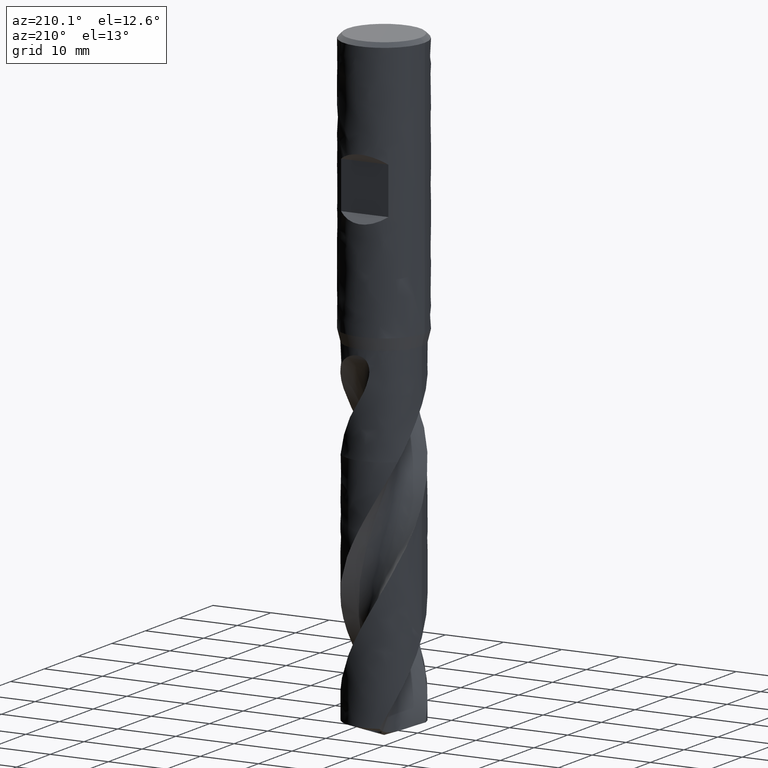
[diagram: clean part render]
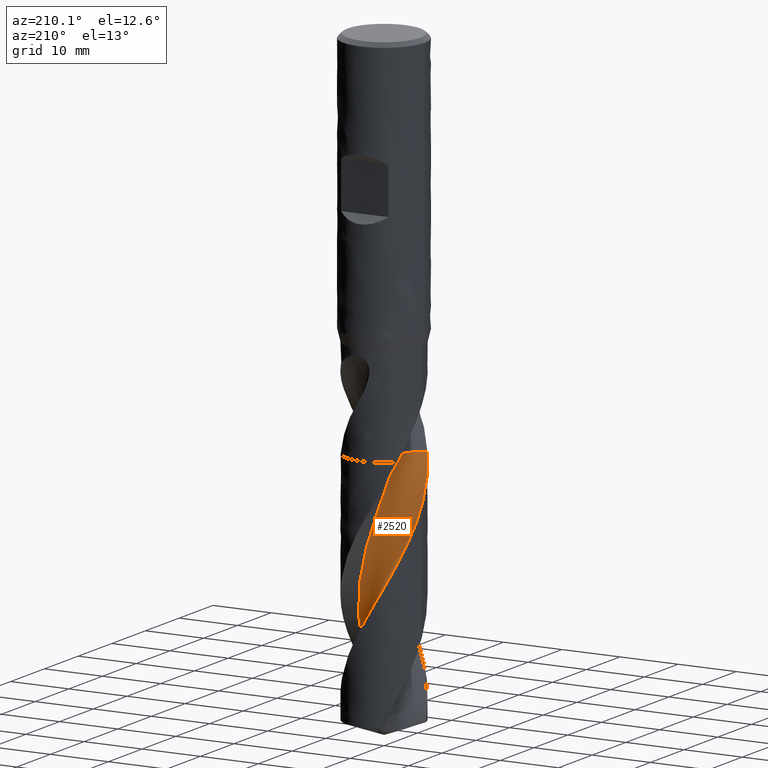
[diagram: same view with one face highlighted and labeled with its STEP entity id]
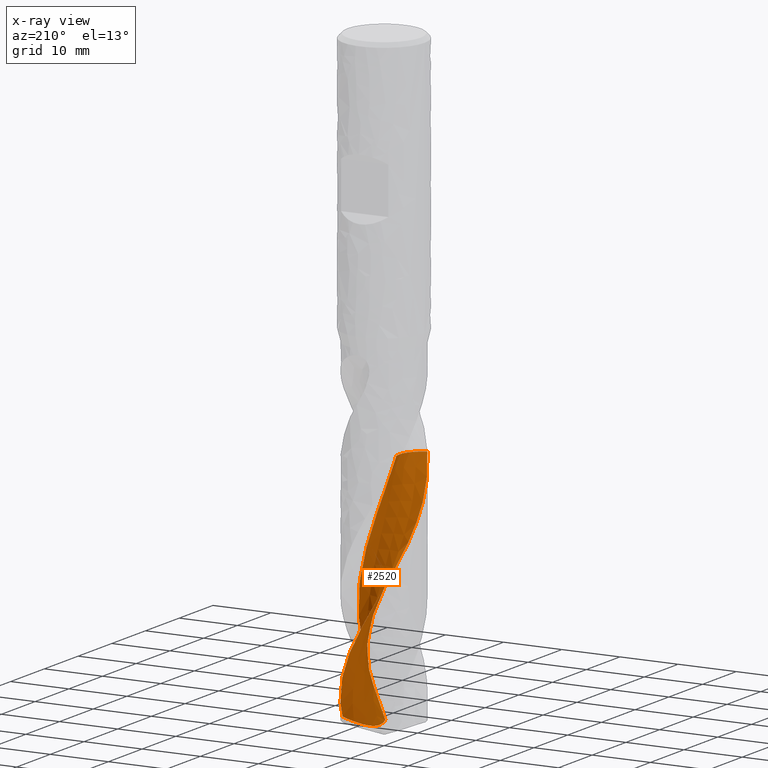
[diagram: x-ray of the same camera — body ghosted, the highlighted face saturated]
A machine part, auxiliary view. The second image highlights one B-rep face of the part: STEP entity #2520.
The next image is the same camera in x-ray: the body ghosted, the highlighted face saturated — about 0% of this face is hidden behind the body in this view.
In plain terms, the highlighted face is a freeform B-spline surface patch.
Its self-contained STEP definition (entity closure, byte-faithful):
#1662 = VERTEX_POINT('', #1663);
#1663 = CARTESIAN_POINT('', (-3.274731390133, 2.16180100099735, -64.));
#1669 = EDGE_CURVE('', #1662, #1670, #1672, .T.);
#1670 = VERTEX_POINT('', #1671);
#1671 = CARTESIAN_POINT('', (-5.1760718996073, -3.93170188214921, -64.));
#1672 = CIRCLE('', #1673, 3.93262291009233);
#1673 = AXIS2_PLACEMENT_3D('', #1674, #1675, #1676);
#1674 = CARTESIAN_POINT('', (-6.41872822901847, -0.200572066561848, -64.));
#1675 = DIRECTION('', (5.3161411429587E-15, -1.05956009560986E-15, -1.));
#1676 = DIRECTION('', (0.799465634835287, 0.600711826683486, 3.61358187321475E-15));
#2447 = EDGE_CURVE('', #1670, #2448, #2450, .T.);
#2448 = VERTEX_POINT('', #2449);
#2449 = CARTESIAN_POINT('', (-6.4940516425605, -0.278016660934741, -70.8407185452002));
#2450 = B_SPLINE_CURVE_WITH_KNOTS('', 3, (#2451, #2452, #2453, #2454, #2455, #2456, #2457, #2458, #2459, #2460, #2461, #2462, #2463, #2464, #2465, #2466, #2467, #2468, #2469, #2470, #2471, #2472, #2473, #2474, #2475, #2476, #2477, #2478, #2479, #2480, #2481, #2482, #2483, #2484), .UNSPECIFIED., .F., .U., (4, 3, 3, 3, 3, 3, 3, 3, 3, 3, 3, 4), (3.82953445312927, 4.21169501627365, 4.65498489470603, 4.95051876793634, 5.61529040440842, 6.28001125312009, 7.27671476023725, 7.94130329898826, 8.93767867998774, 9.93387214064638, 10.9298708244884, 11.7256199762565), .UNSPECIFIED.);
#2451 = CARTESIAN_POINT('', (-5.1760718996073, -3.93170188214921, -64.));
#2452 = CARTESIAN_POINT('', (-5.21454809919389, -3.8810480987614, -64.1103684146986));
#2453 = CARTESIAN_POINT('', (-5.25232311403442, -3.82977308815764, -64.2207020541716));
#2454 = CARTESIAN_POINT('', (-5.28935729741552, -3.7779226276192, -64.3310080362054));
#2455 = CARTESIAN_POINT('', (-5.33231536329698, -3.71777831508303, -64.4589582489742));
#2456 = CARTESIAN_POINT('', (-5.3742801368742, -3.65685417872914, -64.586881603661));
#2457 = CARTESIAN_POINT('', (-5.41518617788323, -3.59524111275758, -64.7148054740404));
#2458 = CARTESIAN_POINT('', (-5.44245754437747, -3.55416472253508, -64.8000901573396));
#2459 = CARTESIAN_POINT('', (-5.46925798925553, -3.51278311336875, -64.8853802651883));
#2460 = CARTESIAN_POINT('', (-5.49557245800577, -3.47112134026, -64.9706816125718));
#2461 = CARTESIAN_POINT('', (-5.55476402296169, -3.3774076661383, -65.162557811647));
#2462 = CARTESIAN_POINT('', (-5.61151306120536, -3.28225162863991, -65.3545038774281));
#2463 = CARTESIAN_POINT('', (-5.6657692055298, -3.18575882792, -65.5464616333618));
#2464 = CARTESIAN_POINT('', (-5.72002120474951, -3.089273399135, -65.7384047239519));
#2465 = CARTESIAN_POINT('', (-5.77179029725185, -2.99143527269054, -65.930390426716));
#2466 = CARTESIAN_POINT('', (-5.82103620714535, -2.89232388834701, -66.1223452163533));
#2467 = CARTESIAN_POINT('', (-5.89487708515778, -2.74371313759068, -66.4101683114319));
#2468 = CARTESIAN_POINT('', (-5.96305807500511, -2.59219794575444, -66.6980139604175));
#2469 = CARTESIAN_POINT('', (-6.02532457675081, -2.43833216457529, -66.9858124467045));
#2470 = CARTESIAN_POINT('', (-6.06684304549584, -2.33573652409902, -67.1777126197153));
#2471 = CARTESIAN_POINT('', (-6.10574023526212, -2.23207966691686, -67.3696333513151));
#2472 = CARTESIAN_POINT('', (-6.14195730381001, -2.12752449531723, -67.5615496485148));
#2473 = CARTESIAN_POINT('', (-6.19625525414919, -1.97077156795884, -67.8492775622426));
#2474 = CARTESIAN_POINT('', (-6.24454626531523, -1.81194493335445, -68.137079243766));
#2475 = CARTESIAN_POINT('', (-6.28668331346321, -1.65154864179731, -68.4248371260434));
#2476 = CARTESIAN_POINT('', (-6.32881266813913, -1.49118163573696, -68.7125424688732));
#2477 = CARTESIAN_POINT('', (-6.36480586861794, -1.3291834079168, -69.0003069310121));
#2478 = CARTESIAN_POINT('', (-6.39454628081804, -1.16609513440152, -69.2880299686281));
#2479 = CARTESIAN_POINT('', (-6.42428087814076, -1.00303874808085, -69.5756967503264));
#2480 = CARTESIAN_POINT('', (-6.44777596374555, -0.838834080519204, -69.8634273195549));
#2481 = CARTESIAN_POINT('', (-6.46495871386772, -0.674024352663626, -70.1511185001513));
#2482 = CARTESIAN_POINT('', (-6.47868680312786, -0.542350281932602, -70.3809682144579));
#2483 = CARTESIAN_POINT('', (-6.48839035831112, -0.410255758242929, -70.6108529681596));
#2484 = CARTESIAN_POINT('', (-6.49405164256049, -0.278016660934767, -70.8407185452002));
#2520 = ADVANCED_FACE('', (#2521), #2757, .T.);
#2521 = FACE_OUTER_BOUND('', #2522, .T.);
#2522 = EDGE_LOOP('', (#2523, #2524, #2567, #2708, #2723, #2756));
#2523 = ORIENTED_EDGE('', *, *, #1669, .F.);
#2524 = ORIENTED_EDGE('', *, *, #2525, .F.);
#2525 = EDGE_CURVE('', #2526, #1662, #2528, .T.);
#2526 = VERTEX_POINT('', #2527);
#2527 = CARTESIAN_POINT('', (1.76933288508049, -3.46675090777578, -105.583370022159));
#2528 = B_SPLINE_CURVE_WITH_KNOTS('', 3, (#2529, #2530, #2531, #2532, #2533, #2534, #2535, #2536, #2537, #2538, #2539, #2540, #2541, #2542, #2543, #2544, #2545, #2546, #2547, #2548, #2549, #2550, #2551, #2552, #2553, #2554, #2555, #2556, #2557, #2558, #2559, #2560, #2561, #2562, #2563, #2564, #2565, #2566), .UNSPECIFIED., .F., .U., (4, 1, 1, 1, 1, 1, 1, 1, 1, 1, 1, 1, 1, 1, 1, 1, 1, 1, 1, 1, 1, 1, 1, 1, 1, 1, 1, 1, 1, 1, 1, 1, 1, 1, 1, 4), (1.4666299778413, 2.41020408163265, 3.61530612244898, 4.82040816326531, 6.02551020408163, 7.23061224489796, 8.43571428571429, 9.64081632653061, 10.8459183673469, 12.0510204081633, 13.2561224489796, 14.4612244897959, 15.6663265306122, 16.8714285714286, 18.0765306122449, 19.2816326530612, 20.4867346938776, 21.6918367346939, 22.8969387755102, 24.1020408163265, 25.3071428571429, 26.5122448979592, 27.7173469387755, 28.9224489795918, 30.1275510204082, 31.3326530612245, 32.5377551020408, 33.7428571428571, 34.9479591836735, 36.1530612244898, 37.3581632653061, 38.5632653061224, 39.7683673469388, 40.9734693877551, 42.1785714285714, 43.05), .UNSPECIFIED.);
#2529 = CARTESIAN_POINT('', (1.76933288508049, -3.46675090777578, -105.583370022159));
#2530 = CARTESIAN_POINT('', (1.86403161741141, -3.41547287836796, -105.268845320895));
#2531 = CARTESIAN_POINT('', (2.07468531352025, -3.29001168240015, -104.552619939359));
#2532 = CARTESIAN_POINT('', (2.38330179197817, -3.06480483217446, -103.434693877551));
#2533 = CARTESIAN_POINT('', (2.68814217933525, -2.78931151072497, -102.229591836735));
#2534 = CARTESIAN_POINT('', (2.96199499352436, -2.48419282969365, -101.024489795918));
#2535 = CARTESIAN_POINT('', (3.20205648307337, -2.15284875457277, -99.819387755102));
#2536 = CARTESIAN_POINT('', (3.40588527757476, -1.79893476523791, -98.6142857142857));
#2537 = CARTESIAN_POINT('', (3.57142669086556, -1.42632644184809, -97.4091836734694));
#2538 = CARTESIAN_POINT('', (3.69703120537813, -1.03907896841299, -96.2040816326531));
#2539 = CARTESIAN_POINT('', (3.78146949403353, -0.641385956096459, -94.9989795918367));
#2540 = CARTESIAN_POINT('', (3.82394319587153, -0.23753689451328, -93.7938775510204));
#2541 = CARTESIAN_POINT('', (3.82409154838274, 0.168126086225984, -92.5887755102041));
#2542 = CARTESIAN_POINT('', (3.78199378763708, 0.571251822612428, -91.3836734693878));
#2543 = CARTESIAN_POINT('', (3.69816732451443, 0.967523674991317, -90.1785714285715));
#2544 = CARTESIAN_POINT('', (3.57356172485133, 1.35270264467177, -88.9734693877551));
#2545 = CARTESIAN_POINT('', (3.40954856110614, 1.72266965894616, -87.7683673469388));
#2546 = CARTESIAN_POINT('', (3.20790723667037, 2.07346664231647, -86.5632653061224));
#2547 = CARTESIAN_POINT('', (2.97080691804732, 2.40133600295455, -85.3581632653061));
#2548 = CARTESIAN_POINT('', (2.700784742685, 2.70275817758209, -84.1530612244898));
#2549 = CARTESIAN_POINT('', (2.40072050156955, 2.97448689464156, -82.9479591836735));
#2550 = CARTESIAN_POINT('', (2.07380802549667, 3.21358183490346, -81.7428571428572));
#2551 = CARTESIAN_POINT('', (1.72352353182169, 3.41743839049559, -80.5377551020408));
#2552 = CARTESIAN_POINT('', (1.35359121524303, 3.58381424703327, -79.3326530612245));
#2553 = CARTESIAN_POINT('', (0.967946387922444, 3.71085254113963, -78.1275510204082));
#2554 = CARTESIAN_POINT('', (0.570696504644847, 3.79710136875352, -76.9224489795918));
#2555 = CARTESIAN_POINT('', (0.166080396016395, 3.84152946889434, -75.7173469387755));
#2556 = CARTESIAN_POINT('', (-0.241573830700888, 3.84353786773258, -74.5122448979592));
#2557 = CARTESIAN_POINT('', (-0.647892196388959, 3.80296756817977, -73.3071428571429));
#2558 = CARTESIAN_POINT('', (-1.04849785427849, 3.72010240775062, -72.1020408163266));
#2559 = CARTESIAN_POINT('', (-1.4390582048143, 3.59566996371033, -70.8969387755102));
#2560 = CARTESIAN_POINT('', (-1.8153173920344, 3.43082953503109, -69.6918367346939));
#2561 = CARTESIAN_POINT('', (-2.17318216479515, 3.22718809041112, -68.4867346938776));
#2562 = CARTESIAN_POINT('', (-2.50860546387415, 2.98669170372674, -67.2816326530612));
#2563 = CARTESIAN_POINT('', (-2.81821987923533, 2.71196183364429, -66.0765306122449));
#2564 = CARTESIAN_POINT('', (-3.07142043178922, 2.43328741944995, -64.9826530612245));
#2565 = CARTESIAN_POINT('', (-3.21742118566723, 2.24403980479224, -64.2904761904762));
#2566 = CARTESIAN_POINT('', (-3.274731390133, 2.16180100099735, -64.));
#2567 = ORIENTED_EDGE('', *, *, #2568, .T.);
#2568 = EDGE_CURVE('', #2526, #2569, #2571, .T.);
#2569 = VERTEX_POINT('', #2570);
#2570 = CARTESIAN_POINT('', (6.35152089864831, 1.3813697093949, -104.63419347727));
#2571 = B_SPLINE_CURVE_WITH_KNOTS('', 3, (#2572, #2573, #2574, #2575, #2576, #2577, #2578, #2579, #2580, #2581, #2582, #2583, #2584, #2585, #2586, #2587, #2588, #2589, #2590, #2591, #2592, #2593, #2594, #2595, #2596, #2597, #2598, #2599, #2600, #2601, #2602, #2603, #2604, #2605, #2606, #2607, #2608, #2609, #2610, #2611, #2612, #2613, #2614, #2615, #2616, #2617, #2618, #2619, #2620, #2621, #2622, #2623, #2624, #2625, #2626, #2627, #2628, #2629, #2630, #2631, #2632, #2633, #2634, #2635, #2636, #2637, #2638, #2639, #2640, #2641, #2642, #2643, #2644, #2645, #2646, #2647, #2648, #2649, #2650, #2651, #2652, #2653, #2654, #2655, #2656, #2657, #2658, #2659, #2660, #2661, #2662, #2663, #2664, #2665, #2666, #2667, #2668, #2669, #2670, #2671, #2672, #2673, #2674, #2675, #2676, #2677, #2678, #2679, #2680, #2681, #2682, #2683, #2684, #2685, #2686, #2687, #2688, #2689, #2690, #2691, #2692, #2693, #2694, #2695, #2696, #2697, #2698, #2699, #2700, #2701, #2702, #2703, #2704, #2705, #2706, #2707), .UNSPECIFIED., .F., .U., (4, 3, 3, 3, 3, 3, 3, 3, 3, 3, 3, 3, 3, 3, 3, 3, 3, 3, 3, 3, 3, 3, 3, 3, 3, 3, 3, 3, 3, 3, 3, 3, 3, 3, 3, 3, 3, 3, 3, 3, 3, 3, 3, 3, 3, 4), (0., 0.197245015067346, 0.394378820851563, 0.59136970964305, 0.788184230135274, 0.984791408064057, 1.18116950054274, 1.31213855939979, 1.44304552365352, 1.57390010649681, 1.70471699541995, 1.83551545641229, 1.96631807802052, 2.09714865878288, 2.22802951020873, 2.35897870320416, 2.4900078950257, 2.62112124878199, 2.75231563162057, 2.88358189985576, 3.01490681895095, 3.14627510838161, 3.2776712151717, 3.40908060866734, 3.60619563629674, 3.73758727468209, 3.77651268036911, 3.81545907693706, 4.0134614030589, 4.07193631900442, 4.27040134124377, 4.46857316330088, 4.66649134392046, 4.86419049878162, 5.06170014098506, 5.25904501924221, 5.45624566055496, 5.65331896011221, 5.85027874109413, 6.14540304955196, 6.44022313230271, 6.73477174461404, 7.02907179497246, 7.32313849173983, 7.61698086497417, 7.75638858353889), .UNSPECIFIED.);
#2572 = CARTESIAN_POINT('', (1.76933288508049, -3.46675090777578, -105.583370022159));
#2573 = CARTESIAN_POINT('', (1.75445268951992, -3.40659293656949, -105.605334590831));
#2574 = CARTESIAN_POINT('', (1.74152128202977, -3.34585772603155, -105.627137050641));
#2575 = CARTESIAN_POINT('', (1.73061558853178, -3.28470357063702, -105.648679546407));
#2576 = CARTESIAN_POINT('', (1.71971604380441, -3.22358389474394, -105.670209896237));
#2577 = CARTESIAN_POINT('', (1.71082920477251, -3.16198445625963, -105.691502296597));
#2578 = CARTESIAN_POINT('', (1.70402047145991, -3.10007259446645, -105.71244348425));
#2579 = CARTESIAN_POINT('', (1.6972166743057, -3.0382056171976, -105.733369490075));
#2580 = CARTESIAN_POINT('', (1.69248109057908, -2.97596182652599, -105.753966832235));
#2581 = CARTESIAN_POINT('', (1.68986485135094, -2.91351725060771, -105.774104917609));
#2582 = CARTESIAN_POINT('', (1.68725095447308, -2.85112858206526, -105.794224973115));
#2583 = CARTESIAN_POINT('', (1.68675005469763, -2.78847109426208, -105.813908690434));
#2584 = CARTESIAN_POINT('', (1.68839555253394, -2.72572917020534, -105.833006814831));
#2585 = CARTESIAN_POINT('', (1.69003931685111, -2.6630533442766, -105.852084819503));
#2586 = CARTESIAN_POINT('', (1.69382722883442, -2.60022135488842, -105.87060025542));
#2587 = CARTESIAN_POINT('', (1.69977056862101, -2.53742564494625, -105.888385274517));
#2588 = CARTESIAN_POINT('', (1.70570698326537, -2.47470310417129, -105.906149570621));
#2589 = CARTESIAN_POINT('', (1.71380138944356, -2.4119414578065, -105.923206150908));
#2590 = CARTESIAN_POINT('', (1.72403752086119, -2.34934082799143, -105.939371271277));
#2591 = CARTESIAN_POINT('', (1.73086423193259, -2.30759103061202, -105.950152161214));
#2592 = CARTESIAN_POINT('', (1.73864741297244, -2.26588396688612, -105.960543792051));
#2593 = CARTESIAN_POINT('', (1.74737400823058, -2.22428088749961, -105.970489015722));
#2594 = CARTESIAN_POINT('', (1.75609646606515, -2.18269753282314, -105.980429524197));
#2595 = CARTESIAN_POINT('', (1.7657665261705, -2.14119414449153, -105.98992964533));
#2596 = CARTESIAN_POINT('', (1.77636357924182, -2.09983313682761, -105.998931860435));
#2597 = CARTESIAN_POINT('', (1.78695639198421, -2.05848867945139, -106.007930473374));
#2598 = CARTESIAN_POINT('', (1.79848175677541, -2.01726211428671, -106.016436729067));
#2599 = CARTESIAN_POINT('', (1.81091078433224, -1.97621658511913, -106.024394786725));
#2600 = CARTESIAN_POINT('', (1.82333623158823, -1.9351828795107, -106.032350551988));
#2601 = CARTESIAN_POINT('', (1.83667232635668, -1.89430544091646, -106.039763037248));
#2602 = CARTESIAN_POINT('', (1.8508814491694, -1.85364744770163, -106.046580614019));
#2603 = CARTESIAN_POINT('', (1.86508857036953, -1.81299518190236, -106.053397230411));
#2604 = CARTESIAN_POINT('', (1.88017712126922, -1.77253757328104, -106.059623064279));
#2605 = CARTESIAN_POINT('', (1.89610076251499, -1.73233683307921, -106.065213538601));
#2606 = CARTESIAN_POINT('', (1.91202491028165, -1.69213481411739, -106.070804190752));
#2607 = CARTESIAN_POINT('', (1.92879387024987, -1.65216518529295, -106.075762678756));
#2608 = CARTESIAN_POINT('', (1.94635322163619, -1.61248789509364, -106.080054301236));
#2609 = CARTESIAN_POINT('', (1.96391632634646, -1.57280212384511, -106.084346841053));
#2610 = CARTESIAN_POINT('', (1.98228066572638, -1.53338490063994, -106.087974692687));
#2611 = CARTESIAN_POINT('', (2.00138509333824, -1.49429242107264, -106.090915419066));
#2612 = CARTESIAN_POINT('', (2.02049686168226, -1.45518492051503, -106.093857275398));
#2613 = CARTESIAN_POINT('', (2.04036038672562, -1.41637945228904, -106.096113152518));
#2614 = CARTESIAN_POINT('', (2.06090982218788, -1.37792696207315, -106.097674403988));
#2615 = CARTESIAN_POINT('', (2.08146998787277, -1.33945439326283, -106.099236470691));
#2616 = CARTESIAN_POINT('', (2.10272819115603, -1.30131353131258, -106.10010409636));
#2617 = CARTESIAN_POINT('', (2.12461637630304, -1.26354880652623, -106.100282783295));
#2618 = CARTESIAN_POINT('', (2.14651793327066, -1.22576101070308, -106.100461579393));
#2619 = CARTESIAN_POINT('', (2.16906166586638, -1.18832980792302, -106.099950802425));
#2620 = CARTESIAN_POINT('', (2.19217993735495, -1.15129229919922, -106.098769214621));
#2621 = CARTESIAN_POINT('', (2.21531305804184, -1.11423100075077, -106.097586867867));
#2622 = CARTESIAN_POINT('', (2.2390326107173, -1.07754576135411, -106.09573244515));
#2623 = CARTESIAN_POINT('', (2.26327378508301, -1.04126612040649, -106.093236012229));
#2624 = CARTESIAN_POINT('', (2.28752994068485, -1.00496405835585, -106.090738036493));
#2625 = CARTESIAN_POINT('', (2.31231901048006, -0.969051934980464, -106.087596354635));
#2626 = CARTESIAN_POINT('', (2.33758090659226, -0.93355207917882, -106.083849686867));
#2627 = CARTESIAN_POINT('', (2.36285664446645, -0.898032771925379, -106.080100966185));
#2628 = CARTESIAN_POINT('', (2.38861569264023, -0.862912006511518, -106.075745314983));
#2629 = CARTESIAN_POINT('', (2.4148039165382, -0.828205721369109, -106.070827213695));
#2630 = CARTESIAN_POINT('', (2.44100384155234, -0.793483929169946, -106.065906914958));
#2631 = CARTESIAN_POINT('', (2.46764250629592, -0.759164700070192, -106.060422118414));
#2632 = CARTESIAN_POINT('', (2.49467228966679, -0.725258690102425, -106.054420321773));
#2633 = CARTESIAN_POINT('', (2.52171099968145, -0.691341482602335, -106.048416543026));
#2634 = CARTESIAN_POINT('', (2.54914944573624, -0.657827205214756, -106.041893716229));
#2635 = CARTESIAN_POINT('', (2.57694651534433, -0.624722439958292, -106.034900033249));
#2636 = CARTESIAN_POINT('', (2.60474947100817, -0.5916106647365, -106.027904869351));
#2637 = CARTESIAN_POINT('', (2.6329187587333, -0.558899533881663, -106.020436864491));
#2638 = CARTESIAN_POINT('', (2.66141936477371, -0.52659271333041, -106.012543125127));
#2639 = CARTESIAN_POINT('', (2.68992285278049, -0.494282625930371, -106.004648587551));
#2640 = CARTESIAN_POINT('', (2.71876453815591, -0.462369191876582, -105.996326425978));
#2641 = CARTESIAN_POINT('', (2.74791485469957, -0.430854173098805, -105.987621431049));
#2642 = CARTESIAN_POINT('', (2.79164053745373, -0.38358142012526, -105.97456387656));
#2643 = CARTESIAN_POINT('', (2.83607670388433, -0.337187038800803, -105.960640698102));
#2644 = CARTESIAN_POINT('', (2.88114286246724, -0.291672829791676, -105.94598988365));
#2645 = CARTESIAN_POINT('', (2.91118276598527, -0.261334267768055, -105.936224040134));
#2646 = CARTESIAN_POINT('', (2.94150975383205, -0.231379848555125, -105.926132405016));
#2647 = CARTESIAN_POINT('', (2.97210456873101, -0.201809761846398, -105.915751503227));
#2648 = CARTESIAN_POINT('', (2.98116842999719, -0.193049481241922, -105.912676111075));
#2649 = CARTESIAN_POINT('', (2.99025609886044, -0.184322657538022, -105.909575213701));
#2650 = CARTESIAN_POINT('', (2.99936712534693, -0.175629297705287, -105.90644970168));
#2651 = CARTESIAN_POINT('', (3.00848306503776, -0.166931249898774, -105.903322504198));
#2652 = CARTESIAN_POINT('', (3.01762251074699, -0.158266584549969, -105.900170623269));
#2653 = CARTESIAN_POINT('', (3.02678503252127, -0.149635310795857, -105.896994924244));
#2654 = CARTESIAN_POINT('', (3.0733670217249, -0.105754170785208, -105.8808497645));
#2655 = CARTESIAN_POINT('', (3.12055379812397, -0.062727405666413, -105.864087075488));
#2656 = CARTESIAN_POINT('', (3.16829600279225, -0.0205575487570152, -105.846810287255));
#2657 = CARTESIAN_POINT('', (3.18239544020651, -0.00810376153890734, -105.84170803033));
#2658 = CARTESIAN_POINT('', (3.19654421708171, 0.00427601807754229, -105.836560530017));
#2659 = CARTESIAN_POINT('', (3.21074122540818, 0.016581675175908, -105.831370179821));
#2660 = CARTESIAN_POINT('', (3.25892615270025, 0.0583473189601965, -105.813754028511));
#2661 = CARTESIAN_POINT('', (3.30767517037318, 0.0992670403019206, -105.795642029474));
#2662 = CARTESIAN_POINT('', (3.35694979797664, 0.139334026882377, -105.777118188978));
#2663 = CARTESIAN_POINT('', (3.40615163023495, 0.179341820927872, -105.758621714479));
#2664 = CARTESIAN_POINT('', (3.45589088365847, 0.218510159662243, -105.739709500502));
#2665 = CARTESIAN_POINT('', (3.50613462440283, 0.256828413372458, -105.720452257723));
#2666 = CARTESIAN_POINT('', (3.55631405784811, 0.295097623294037, -105.701219662418));
#2667 = CARTESIAN_POINT('', (3.60700942063707, 0.332528547695754, -105.681637946936));
#2668 = CARTESIAN_POINT('', (3.65819124274261, 0.369106716584301, -105.661766879078));
#2669 = CARTESIAN_POINT('', (3.70931642458718, 0.405644406315464, -105.641917801498));
#2670 = CARTESIAN_POINT('', (3.76093938647809, 0.441340017146923, -105.62177511151));
#2671 = CARTESIAN_POINT('', (3.81303261024091, 0.476175400063489, -105.601389699928));
#2672 = CARTESIAN_POINT('', (3.86507589790111, 0.510977390090723, -105.581023829621));
#2673 = CARTESIAN_POINT('', (3.91760083790701, 0.5449289638407, -105.560410816678));
#2674 = CARTESIAN_POINT('', (3.9705807503221, 0.578008527351753, -105.539594420926));
#2675 = CARTESIAN_POINT('', (4.02351646651799, 0.611060495655987, -105.518795390359));
#2676 = CARTESIAN_POINT('', (4.07691876720661, 0.643249585694429, -105.497788391269));
#2677 = CARTESIAN_POINT('', (4.13076096775274, 0.67455100717793, -105.47661149858));
#2678 = CARTESIAN_POINT('', (4.1845638156967, 0.705829550837441, -105.455450083822));
#2679 = CARTESIAN_POINT('', (4.23881852291101, 0.736229010280263, -105.434114014079));
#2680 = CARTESIAN_POINT('', (4.29349773654487, 0.765721634965289, -105.412636865747));
#2681 = CARTESIAN_POINT('', (4.34814164123143, 0.79519521487147, -105.391173586223));
#2682 = CARTESIAN_POINT('', (4.40322246800251, 0.823770089106753, -105.369564275256));
#2683 = CARTESIAN_POINT('', (4.45871164754741, 0.851415760932482, -105.347838981643));
#2684 = CARTESIAN_POINT('', (4.51416886409873, 0.879045508240345, -105.32612620228));
#2685 = CARTESIAN_POINT('', (4.57004740410131, 0.905753789127919, -105.304292276901));
#2686 = CARTESIAN_POINT('', (4.62631700398758, 0.931507552829074, -105.282364523357));
#2687 = CARTESIAN_POINT('', (4.71063130750093, 0.970096962629379, -105.249508002761));
#2688 = CARTESIAN_POINT('', (4.79586394857346, 1.00656154742836, -105.216425668439));
#2689 = CARTESIAN_POINT('', (4.88190365621443, 1.0407799744138, -105.183201231121));
#2690 = CARTESIAN_POINT('', (4.9678546707517, 1.07496312770322, -105.150011042855));
#2691 = CARTESIAN_POINT('', (5.05466205707951, 1.1069248077774, -105.116659220143));
#2692 = CARTESIAN_POINT('', (5.14220070607792, 1.13653306526492, -105.083222870372));
#2693 = CARTESIAN_POINT('', (5.22965874945649, 1.16611405945818, -105.049817308805));
#2694 = CARTESIAN_POINT('', (5.31790197124352, 1.19336442807908, -105.016306174687));
#2695 = CARTESIAN_POINT('', (5.40678821331501, 1.21814295330789, -104.982763116231));
#2696 = CARTESIAN_POINT('', (5.49559944658662, 1.24290056858037, -104.949248363893));
#2697 = CARTESIAN_POINT('', (5.58511292965041, 1.26520707056321, -104.915678924312));
#2698 = CARTESIAN_POINT('', (5.67516607874386, 1.28491358082342, -104.882127514727));
#2699 = CARTESIAN_POINT('', (5.7651478237526, 1.30460446558533, -104.848602708406));
#2700 = CARTESIAN_POINT('', (5.85573452010084, 1.32171365793434, -104.815071233424));
#2701 = CARTESIAN_POINT('', (5.9467395587382, 1.33608669944889, -104.781606974331));
#2702 = CARTESIAN_POINT('', (6.03767517580551, 1.35044877674515, -104.748168242851));
#2703 = CARTESIAN_POINT('', (6.12910125186345, 1.36209001273823, -104.714769864672));
#2704 = CARTESIAN_POINT('', (6.22080334708995, 1.37085315772342, -104.681488676296));
#2705 = CARTESIAN_POINT('', (6.26430959754123, 1.37501065902724, -104.665699072872));
#2706 = CARTESIAN_POINT('', (6.30789057696017, 1.3785217742271, -104.64993115551));
#2707 = CARTESIAN_POINT('', (6.35152089864831, 1.3813697093949, -104.63419347727));
#2708 = ORIENTED_EDGE('', *, *, #2709, .F.);
#2709 = EDGE_CURVE('', #2710, #2569, #2712, .T.);
#2710 = VERTEX_POINT('', #2711);
#2711 = CARTESIAN_POINT('', (5.90833566697193, 2.70953310487018, -102.160751738249));
#2712 = B_SPLINE_CURVE_WITH_KNOTS('', 3, (#2713, #2714, #2715, #2716, #2717, #2718, #2719, #2720, #2721, #2722), .UNSPECIFIED., .F., .U., (4, 3, 3, 4), (0., 0.996649814284806, 1.99312293181498, 2.84343295820334), .UNSPECIFIED.);
#2713 = CARTESIAN_POINT('', (5.90833566697188, 2.70953310487027, -102.160751738249));
#2714 = CARTESIAN_POINT('', (5.97668161123896, 2.56049976053498, -102.449690774479));
#2715 = CARTESIAN_POINT('', (6.03938812307023, 2.40887095584368, -102.738691504657));
#2716 = CARTESIAN_POINT('', (6.09625753935408, 2.25513724945253, -103.027654632911));
#2717 = CARTESIAN_POINT('', (6.15311687321866, 2.10143079861955, -103.316566530686));
#2718 = CARTESIAN_POINT('', (6.20416159151847, 1.94556528476745, -103.605540468623));
#2719 = CARTESIAN_POINT('', (6.24923272492601, 1.7880409250667, -103.894475427715));
#2720 = CARTESIAN_POINT('', (6.28769280574796, 1.65362230393426, -104.141029286889));
#2721 = CARTESIAN_POINT('', (6.32181427634443, 1.51796039261904, -104.387623302988));
#2722 = CARTESIAN_POINT('', (6.35152089864831, 1.3813697093949, -104.63419347727));
#2723 = ORIENTED_EDGE('', *, *, #2724, .T.);
#2724 = EDGE_CURVE('', #2710, #2448, #2725, .T.);
#2725 = (
   BOUNDED_CURVE ()
   B_SPLINE_CURVE (3, (#2726, #2727, #2728, #2729, #2730, #2731, #2732, #2733, #2734, #2735, #2736, #2737, #2738, #2739, #2740, #2741, #2742, #2743, #2744, #2745, #2746, #2747, #2748, #2749, #2750, #2751, #2752, #2753, #2754, #2755), .UNSPECIFIED., .F., .U.)
   B_SPLINE_CURVE_WITH_KNOTS ((4, 1, 1, 1, 1, 1, 1, 1, 1, 1, 1, 1, 1, 1, 1, 1, 1, 1, 1, 1, 1, 1, 1, 1, 1, 1, 1, 4), (4.88924826175112, 6.02551020408163, 7.23061224489796, 8.43571428571429, 9.64081632653061, 10.8459183673469, 12.0510204081633, 13.2561224489796, 14.4612244897959, 15.6663265306122, 16.8714285714286, 18.0765306122449, 19.2816326530612, 20.4867346938776, 21.6918367346939, 22.8969387755102, 24.1020408163265, 25.3071428571429, 26.5122448979592, 27.7173469387755, 28.9224489795918, 30.1275510204082, 31.3326530612245, 32.5377551020408, 33.7428571428571, 34.9479591836735, 36.1530612244898, 36.2092814547998), .UNSPECIFIED.)
   CURVE ()
   GEOMETRIC_REPRESENTATION_ITEM ()
   RATIONAL_B_SPLINE_CURVE ((1., 1., 1., 1., 1., 1., 1., 1., 1., 1., 1., 1., 1., 1., 1., 1., 1., 1., 1., 1., 1., 1., 1., 1., 1., 1., 1., 1., 1., 1.))
   REPRESENTATION_ITEM ('')
);
#2726 = CARTESIAN_POINT('', (5.90833566697193, 2.70953310487018, -102.160751738249));
#2727 = CARTESIAN_POINT('', (5.81412422597814, 2.90451787821771, -101.781997757472));
#2728 = CARTESIAN_POINT('', (5.6003899054668, 3.29632286236537, -101.001543096423));
#2729 = CARTESIAN_POINT('', (5.21887280121107, 3.85293253259858, -99.819387755102));
#2730 = CARTESIAN_POINT('', (4.77373126432579, 4.37573664048354, -98.6142857142857));
#2731 = CARTESIAN_POINT('', (4.27734573226735, 4.84848669181043, -97.4091836734694));
#2732 = CARTESIAN_POINT('', (3.73520447454408, 5.26627847725663, -96.2040816326531));
#2733 = CARTESIAN_POINT('', (3.15325247827192, 5.62479484017546, -94.9989795918367));
#2734 = CARTESIAN_POINT('', (2.53783017041521, 5.92034679151663, -93.7938775510204));
#2735 = CARTESIAN_POINT('', (1.89560870644017, 6.14990845411134, -92.5887755102041));
#2736 = CARTESIAN_POINT('', (1.23352228196591, 6.31114551459081, -91.3836734693878));
#2737 = CARTESIAN_POINT('', (0.558698135510806, 6.40243695923007, -90.1785714285714));
#2738 = CARTESIAN_POINT('', (-0.121615123965296, 6.42288991711561, -88.9734693877551));
#2739 = CARTESIAN_POINT('', (-0.800120205917468, 6.37234749610151, -87.7683673469388));
#2740 = CARTESIAN_POINT('', (-1.46954418193402, 6.25138955589263, -86.5632653061224));
#2741 = CARTESIAN_POINT('', (-2.122711220495, 6.06132642264097, -85.3581632653061));
#2742 = CARTESIAN_POINT('', (-2.7526143529582, 5.80418560900812, -84.1530612244898));
#2743 = CARTESIAN_POINT('', (-3.35248561967308, 5.48269166266879, -82.9479591836735));
#2744 = CARTESIAN_POINT('', (-3.9158639587884, 5.10023932432783, -81.7428571428571));
#2745 = CARTESIAN_POINT('', (-4.43666021913699, 4.66086023281848, -80.5377551020408));
#2746 = CARTESIAN_POINT('', (-4.90921870097163, 4.16918347060464, -79.3326530612245));
#2747 = CARTESIAN_POINT('', (-5.32837465974773, 3.63039029305432, -78.1275510204082));
#2748 = CARTESIAN_POINT('', (-5.68950722755139, 3.05016344604714, -76.9224489795918));
#2749 = CARTESIAN_POINT('', (-5.98858729196853, 2.4346314842187, -75.7173469387755));
#2750 = CARTESIAN_POINT('', (-6.2222197319184, 1.79030869591702, -74.5122448979592));
#2751 = CARTESIAN_POINT('', (-6.38768013026432, 1.12403072536498, -73.3071428571429));
#2752 = CARTESIAN_POINT('', (-6.4829436096602, 0.442888097662928, -72.1020408163266));
#2753 = CARTESIAN_POINT('', (-6.49915943054282, -0.0269794804705177, -71.2798993790123));
#2754 = CARTESIAN_POINT('', (-6.49429461554166, -0.267304823079459, -70.8594586219702));
#2755 = CARTESIAN_POINT('', (-6.4940516425605, -0.278016660934742, -70.8407185452002));
#2756 = ORIENTED_EDGE('', *, *, #2447, .F.);
#2757 = (
   BOUNDED_SURFACE ()
   B_SPLINE_SURFACE (3, 2, ((#2758, #2759, #2760, #2761, #2762), (#2763, #2764, #2765, #2766, #2767), (#2768, #2769, #2770, #2771, #2772), (#2773, #2774, #2775, #2776, #2777), (#2778, #2779, #2780, #2781, #2782), (#2783, #2784, #2785, #2786, #2787), (#2788, #2789, #2790, #2791, #2792), (#2793, #2794, #2795, #2796, #2797), (#2798, #2799, #2800, #2801, #2802), (#2803, #2804, #2805, #2806, #2807), (#2808, #2809, #2810, #2811, #2812), (#2813, #2814, #2815, #2816, #2817), (#2818, #2819, #2820, #2821, #2822), (#2823, #2824, #2825, #2826, #2827), (#2828, #2829, #2830, #2831, #2832), (#2833, #2834, #2835, #2836, #2837), (#2838, #2839, #2840, #2841, #2842), (#2843, #2844, #2845, #2846, #2847), (#2848, #2849, #2850, #2851, #2852), (#2853, #2854, #2855, #2856, #2857), (#2858, #2859, #2860, #2861, #2862), (#2863, #2864, #2865, #2866, #2867), (#2868, #2869, #2870, #2871, #2872), (#2873, #2874, #2875, #2876, #2877), (#2878, #2879, #2880, #2881, #2882), (#2883, #2884, #2885, #2886, #2887), (#2888, #2889, #2890, #2891, #2892), (#2893, #2894, #2895, #2896, #2897), (#2898, #2899, #2900, #2901, #2902), (#2903, #2904, #2905, #2906, #2907), (#2908, #2909, #2910, #2911, #2912), (#2913, #2914, #2915, #2916, #2917), (#2918, #2919, #2920, #2921, #2922), (#2923, #2924, #2925, #2926, #2927), (#2928, #2929, #2930, #2931, #2932), (#2933, #2934, #2935, #2936, #2937), (#2938, #2939, #2940, #2941, #2942), (#2943, #2944, #2945, #2946, #2947)), .UNSPECIFIED., .F., .F., .U.)
   B_SPLINE_SURFACE_WITH_KNOTS ((4, 1, 1, 1, 1, 1, 1, 1, 1, 1, 1, 1, 1, 1, 1, 1, 1, 1, 1, 1, 1, 1, 1, 1, 1, 1, 1, 1, 1, 1, 1, 1, 1, 1, 1, 4), (3, 2, 3), (0.949538420604508, 2.41020408163265, 3.61530612244898, 4.82040816326531, 6.02551020408163, 7.23061224489796, 8.43571428571429, 9.64081632653061, 10.8459183673469, 12.0510204081633, 13.2561224489796, 14.4612244897959, 15.6663265306122, 16.8714285714286, 18.0765306122449, 19.2816326530612, 20.4867346938776, 21.6918367346939, 22.8969387755102, 24.1020408163265, 25.3071428571429, 26.5122448979592, 27.7173469387755, 28.9224489795918, 30.1275510204082, 31.3326530612245, 32.5377551020408, 33.7428571428571, 34.9479591836735, 36.1530612244898, 37.3581632653061, 38.5632653061224, 39.7683673469388, 40.9734693877551, 42.1785714285714, 43.050000000009), (0., 0.5, 1.), .UNSPECIFIED.)
   GEOMETRIC_REPRESENTATION_ITEM ()
   RATIONAL_B_SPLINE_SURFACE (((1., 0.887010833178222, 1., 0.887010833178222, 1.), (1., 0.887010833178222, 1., 0.887010833178222, 1.), (1., 0.887010833178222, 1., 0.887010833178222, 1.), (1., 0.887010833178222, 1., 0.887010833178222, 1.), (1., 0.887010833178222, 1., 0.887010833178222, 1.), (1., 0.887010833178222, 1., 0.887010833178222, 1.), (1., 0.887010833178221, 1., 0.887010833178221, 1.), (1., 0.887010833178222, 1., 0.887010833178222, 1.), (1., 0.887010833178222, 1., 0.887010833178222, 1.), (1., 0.887010833178222, 1., 0.887010833178222, 1.), (1., 0.887010833178222, 1., 0.887010833178222, 1.), (1., 0.887010833178222, 1., 0.887010833178222, 1.), (1., 0.887010833178222, 1., 0.887010833178222, 1.), (1., 0.887010833178222, 1., 0.887010833178222, 1.), (1., 0.887010833178222, 1., 0.887010833178222, 1.), (1., 0.887010833178222, 1., 0.887010833178222, 1.), (1., 0.887010833178222, 1., 0.887010833178222, 1.), (1., 0.887010833178222, 1., 0.887010833178222, 1.), (1., 0.887010833178222, 1., 0.887010833178222, 1.), (1., 0.887010833178222, 1., 0.887010833178222, 1.), (1., 0.887010833178222, 1., 0.887010833178222, 1.), (1., 0.887010833178222, 1., 0.887010833178222, 1.), (1., 0.887010833178222, 1., 0.887010833178222, 1.), (1., 0.887010833178222, 1., 0.887010833178222, 1.), (1., 0.887010833178222, 1., 0.887010833178222, 1.), (1., 0.887010833178222, 1., 0.887010833178222, 1.), (1., 0.887010833178222, 1., 0.887010833178222, 1.), (1., 0.887010833178222, 1., 0.887010833178222, 1.), (1., 0.887010833178222, 1., 0.887010833178222, 1.), (1., 0.887010833178222, 1., 0.887010833178222, 1.), (1., 0.887010833178222, 1., 0.887010833178222, 1.), (1., 0.887010833178222, 1., 0.887010833178222, 1.), (1., 0.887010833178221, 1., 0.887010833178221, 1.), (1., 0.887010833178222, 1., 0.887010833178222, 1.), (1., 0.887010833178222, 1., 0.887010833178222, 1.), (1., 0.887010833178222, 1., 0.887010833178222, 1.), (1., 0.887010833178222, 1., 0.887010833178222, 1.), (1., 0.887010833178222, 1., 0.887010833178222, 1.)))
   REPRESENTATION_ITEM ('')
   SURFACE ()
);
#2758 = CARTESIAN_POINT('', (6.52818385020269, 0.546413793487397, -106.100461579395));
#2759 = CARTESIAN_POINT('', (4.56654574812997, 1.07994724920422, -106.100461579395));
#2760 = CARTESIAN_POINT('', (3.00435133518566, -0.22091039405971, -106.100461579395));
#2761 = CARTESIAN_POINT('', (1.44215692224135, -1.52176803732364, -106.100461579395));
#2762 = CARTESIAN_POINT('', (1.61171921578585, -3.54758407548717, -106.100461579395));
#2763 = CARTESIAN_POINT('', (6.49778687224828, 0.825353898489576, -105.613573025719));
#2764 = CARTESIAN_POINT('', (4.51540729488309, 1.27432112149444, -105.613573025719));
#2765 = CARTESIAN_POINT('', (3.01058866285968, -0.0920321420514505, -105.613573025719));
#2766 = CARTESIAN_POINT('', (1.50577003083628, -1.45838540559734, -105.613573025719));
#2767 = CARTESIAN_POINT('', (1.76189259158019, -3.47476870000475, -105.613573025719));
#2768 = CARTESIAN_POINT('', (6.41015723301756, 1.33008926303685, -104.724983791771));
#2769 = CARTESIAN_POINT('', (4.39976063420348, 1.62257305921579, -104.724983791771));
#2770 = CARTESIAN_POINT('', (3.00705581784206, 0.143514388968343, -104.724983791771));
#2771 = CARTESIAN_POINT('', (1.61435100148064, -1.3355442812791, -104.724983791771));
#2772 = CARTESIAN_POINT('', (2.02710226937967, -3.32473447992734, -104.724983791771));
#2773 = CARTESIAN_POINT('', (6.19996276994096, 2.04101851165654, -103.434693877551));
#2774 = CARTESIAN_POINT('', (4.17540511732618, 2.10388348589397, -103.434693877551));
#2775 = CARTESIAN_POINT('', (2.96267058159139, 0.481520813868059, -103.434693877551));
#2776 = CARTESIAN_POINT('', (1.74993604585659, -1.14084185815785, -103.434693877551));
#2777 = CARTESIAN_POINT('', (2.38330179197817, -3.06480483217446, -103.434693877551));
#2778 = CARTESIAN_POINT('', (5.93609159455588, 2.67942677442041, -102.229591836735));
#2779 = CARTESIAN_POINT('', (3.92072225803448, 2.52812334781051, -102.229591836735));
#2780 = CARTESIAN_POINT('', (2.88869440727679, 0.790445355559056, -102.229591836735));
#2781 = CARTESIAN_POINT('', (1.8566665565191, -0.947232636692402, -102.229591836735));
#2782 = CARTESIAN_POINT('', (2.68814217933525, -2.78931151072497, -102.229591836735));
#2783 = CARTESIAN_POINT('', (5.60779549594858, 3.28551856753832, -101.024489795918));
#2784 = CARTESIAN_POINT('', (3.62383095338236, 2.92263260112636, -101.024489795918));
#2785 = CARTESIAN_POINT('', (2.78313442244054, 1.08932115086999, -101.024489795918));
#2786 = CARTESIAN_POINT('', (1.94243789149873, -0.74399029938638, -101.024489795918));
#2787 = CARTESIAN_POINT('', (2.96199499352435, -2.48419282969365, -101.024489795918));
#2788 = CARTESIAN_POINT('', (5.21887280121107, 3.85293253259858, -99.819387755102));
#2789 = CARTESIAN_POINT('', (3.28809708701645, 3.28330802093561, -99.819387755102));
#2790 = CARTESIAN_POINT('', (2.64725871668139, 1.37498595013169, -99.819387755102));
#2791 = CARTESIAN_POINT('', (2.00642034634634, -0.533336120672223, -99.819387755102));
#2792 = CARTESIAN_POINT('', (3.20205648307337, -2.15284875457277, -99.819387755102));
#2793 = CARTESIAN_POINT('', (4.77373126432579, 4.37573664048354, -98.6142857142857));
#2794 = CARTESIAN_POINT('', (2.91727269123114, 3.60641519912183, -98.6142857142857));
#2795 = CARTESIAN_POINT('', (2.48264303004896, 1.64442871308883, -98.6142857142857));
#2796 = CARTESIAN_POINT('', (2.04801336886678, -0.317557772944179, -98.6142857142857));
#2797 = CARTESIAN_POINT('', (3.40588527757476, -1.79893476523791, -98.6142857142857));
#2798 = CARTESIAN_POINT('', (4.27734573226735, 4.84848669181043, -97.4091836734694));
#2799 = CARTESIAN_POINT('', (2.51545974884939, 3.8886254927222, -97.4091836734694));
#2800 = CARTESIAN_POINT('', (2.29115572869047, 1.89481922163659, -97.4091836734694));
#2801 = CARTESIAN_POINT('', (2.06685170853154, -0.0989870494490166, -97.4091836734694));
#2802 = CARTESIAN_POINT('', (3.57142669086556, -1.42632644184809, -97.4091836734694));
#2803 = CARTESIAN_POINT('', (3.73520447454408, 5.26627847725663, -96.2040816326531));
#2804 = CARTESIAN_POINT('', (2.08706663723853, 4.12704727777126, -96.2040816326531));
#2805 = CARTESIAN_POINT('', (2.07493717587774, 2.12353562749164, -96.2040816326531));
#2806 = CARTESIAN_POINT('', (2.06280771451695, 0.120023977212017, -96.2040816326531));
#2807 = CARTESIAN_POINT('', (3.69703120537813, -1.03907896841299, -96.2040816326531));
#2808 = CARTESIAN_POINT('', (3.15325247827192, 5.62479484017546, -94.9989795918367));
#2809 = CARTESIAN_POINT('', (1.63676296376758, 4.31925326988384, -94.9989795918367));
#2810 = CARTESIAN_POINT('', (1.83637735848309, 2.32818990253878, -94.9989795918367));
#2811 = CARTESIAN_POINT('', (2.0359917531986, 0.337126535193716, -94.9989795918367));
#2812 = CARTESIAN_POINT('', (3.78146949403353, -0.641385956096458, -94.9989795918367));
#2813 = CARTESIAN_POINT('', (2.53783017041521, 5.92034679151663, -93.7938775510204));
#2814 = CARTESIAN_POINT('', (1.16943179314738, 4.46330314617587, -93.7938775510204));
#2815 = CARTESIAN_POINT('', (1.57809100910472, 2.50665091633269, -93.7938775510204));
#2816 = CARTESIAN_POINT('', (1.98675022506205, 0.549998686489509, -93.7938775510204));
#2817 = CARTESIAN_POINT('', (3.82394319587153, -0.237536894513279, -93.7938775510204));
#2818 = CARTESIAN_POINT('', (1.89560870644017, 6.14990845411134, -92.5887755102041));
#2819 = CARTESIAN_POINT('', (0.690120097352601, 4.5577614315072, -92.5887755102041));
#2820 = CARTESIAN_POINT('', (1.30289072526519, 2.65706495763382, -92.5887755102041));
#2821 = CARTESIAN_POINT('', (1.91566135317778, 0.756368483760432, -92.5887755102041));
#2822 = CARTESIAN_POINT('', (3.82409154838274, 0.168126086225984, -92.5887755102041));
#2823 = CARTESIAN_POINT('', (1.23352228196591, 6.31114551459081, -91.3836734693878));
#2824 = CARTESIAN_POINT('', (0.203987785715455, 4.60171046959328, -91.3836734693878));
#2825 = CARTESIAN_POINT('', (1.01375826994462, 2.77787352104041, -91.3836734693878));
#2826 = CARTESIAN_POINT('', (1.82352875417378, 0.954036572487543, -91.3836734693878));
#2827 = CARTESIAN_POINT('', (3.78199378763708, 0.571251822612428, -91.3836734693878));
#2828 = CARTESIAN_POINT('', (0.558698135510806, 6.40243695923007, -90.1785714285714));
#2829 = CARTESIAN_POINT('', (-0.283744187787777, 4.59475839142007, -90.1785714285714));
#2830 = CARTESIAN_POINT('', (0.713814340822284, 2.86782820910184, -90.1785714285714));
#2831 = CARTESIAN_POINT('', (1.71137286943235, 1.14089802678362, -90.1785714285714));
#2832 = CARTESIAN_POINT('', (3.69816732451443, 0.967523674991318, -90.1785714285714));
#2833 = CARTESIAN_POINT('', (-0.121615123965296, 6.42288991711561, -88.9734693877551));
#2834 = CARTESIAN_POINT('', (-0.767846172402766, 4.53704202311657, -88.9734693877551));
#2835 = CARTESIAN_POINT('', (0.40628708336247, 2.92600262416591, -88.9734693877551));
#2836 = CARTESIAN_POINT('', (1.58042033912771, 1.31496322521525, -88.9734693877551));
#2837 = CARTESIAN_POINT('', (3.57356172485133, 1.35270264467177, -88.9734693877551));
#2838 = CARTESIAN_POINT('', (-0.800120205917468, 6.37234749610151, -87.7683673469388));
#2839 = CARTESIAN_POINT('', (-1.24313214476436, 4.42922472207102, -87.7683673469388));
#2840 = CARTESIAN_POINT('', (0.0944796387424435, 2.95180115059919, -87.7683673469388));
#2841 = CARTESIAN_POINT('', (1.43209142224925, 1.47437757912736, -87.7683673469388));
#2842 = CARTESIAN_POINT('', (3.40954856110614, 1.72266965894616, -87.7683673469388));
#2843 = CARTESIAN_POINT('', (-1.46954418193402, 6.25138955589263, -86.5632653061224));
#2844 = CARTESIAN_POINT('', (-1.70451153482736, 4.27248917207256, -86.5632653061225));
#2845 = CARTESIAN_POINT('', (-0.218262976908278, 2.94496455456357, -86.5632653061224));
#2846 = CARTESIAN_POINT('', (1.26798558101081, 1.61743993705458, -86.5632653061225));
#2847 = CARTESIAN_POINT('', (3.20790723667037, 2.07346664231647, -86.5632653061224));
#2848 = CARTESIAN_POINT('', (-2.122711220495, 6.06132642264097, -85.3581632653061));
#2849 = CARTESIAN_POINT('', (-2.14704008377771, 4.06852521104047, -85.3581632653061));
#2850 = CARTESIAN_POINT('', (-0.52858736013575, 2.90557235564136, -85.3581632653061));
#2851 = CARTESIAN_POINT('', (1.08986536350621, 1.74261950024225, -85.3581632653061));
#2852 = CARTESIAN_POINT('', (2.97080691804732, 2.40133600295455, -85.3581632653061));
#2853 = CARTESIAN_POINT('', (-2.7526143529582, 5.80418560900812, -84.1530612244898));
#2854 = CARTESIAN_POINT('', (-2.56596927330304, 3.81951280667431, -84.1530612244898));
#2855 = CARTESIAN_POINT('', (-0.833165270375465, 2.83404195194484, -84.1530612244898));
#2856 = CARTESIAN_POINT('', (0.899638732552108, 1.84857109721537, -84.1530612244898));
#2857 = CARTESIAN_POINT('', (2.700784742685, 2.70275817758209, -84.1530612244898));
#2858 = CARTESIAN_POINT('', (-3.35248561967308, 5.48269166266879, -82.9479591836735));
#2859 = CARTESIAN_POINT('', (-2.95679387803828, 3.52810033624424, -82.9479591836734));
#2860 = CARTESIAN_POINT('', (-1.12872693818765, 2.73112450777941, -82.9479591836735));
#2861 = CARTESIAN_POINT('', (0.69934000166298, 1.93414867931457, -82.9479591836734));
#2862 = CARTESIAN_POINT('', (2.40072050156955, 2.97448689464156, -82.9479591836735));
#2863 = CARTESIAN_POINT('', (-3.9158639587884, 5.10023932432783, -81.7428571428571));
#2864 = CARTESIAN_POINT('', (-3.31529720884847, 3.19737836644721, -81.7428571428572));
#2865 = CARTESIAN_POINT('', (-1.41209382898137, 2.59789764029979, -81.7428571428571));
#2866 = CARTESIAN_POINT('', (0.491109550885729, 1.99841691415237, -81.7428571428572));
#2867 = CARTESIAN_POINT('', (2.07380802549667, 3.21358183490345, -81.7428571428571));
#2868 = CARTESIAN_POINT('', (-4.43666021913699, 4.66086023281848, -80.5377551020408));
#2869 = CARTESIAN_POINT('', (-3.63759363393772, 2.83084916727739, -80.5377551020408));
#2870 = CARTESIAN_POINT('', (-1.68021056418247, 2.43575496861036, -80.5377551020408));
#2871 = CARTESIAN_POINT('', (0.277172505572776, 2.04066076994332, -80.5377551020408));
#2872 = CARTESIAN_POINT('', (1.72352353182169, 3.41743839049559, -80.5377551020408));
#2873 = CARTESIAN_POINT('', (-4.90921870097163, 4.16918347060464, -79.3326530612245));
#2874 = CARTESIAN_POINT('', (-3.92016798655192, 2.43239223098072, -79.3326530612245));
#2875 = CARTESIAN_POINT('', (-1.93017570796346, 2.24639261569391, -79.3326530612245));
#2876 = CARTESIAN_POINT('', (0.059816570624997, 2.06039300040709, -79.3326530612245));
#2877 = CARTESIAN_POINT('', (1.35359121524302, 3.58381424703326, -79.3326530612245));
#2878 = CARTESIAN_POINT('', (-5.32837465974773, 3.63039029305432, -78.1275510204082));
#2879 = CARTESIAN_POINT('', (-4.1599114956134, 2.00622609927856, -78.1275510204082));
#2880 = CARTESIAN_POINT('', (-2.15927113832937, 2.0317927785407, -78.1275510204082));
#2881 = CARTESIAN_POINT('', (-0.158630781045346, 2.05735945780285, -78.1275510204082));
#2882 = CARTESIAN_POINT('', (0.967946387922443, 3.71085254113963, -78.1275510204082));
#2883 = CARTESIAN_POINT('', (-5.68950722755139, 3.05016344604714, -76.9224489795918));
#2884 = CARTESIAN_POINT('', (-4.35415389586582, 1.55686684333787, -76.9224489795918));
#2885 = CARTESIAN_POINT('', (-2.36498972576902, 1.79420451103911, -76.9224489795918));
#2886 = CARTESIAN_POINT('', (-0.375825555672211, 2.03154217874036, -76.9224489795918));
#2887 = CARTESIAN_POINT('', (0.570696504644846, 3.79710136875352, -76.9224489795918));
#2888 = CARTESIAN_POINT('', (-5.98858729196853, 2.4346314842187, -75.7173469387755));
#2889 = CARTESIAN_POINT('', (-4.50069143528204, 1.08908353740519, -75.7173469387755));
#2890 = CARTESIAN_POINT('', (-2.54506108082118, 1.5361218738263, -75.7173469387755));
#2891 = CARTESIAN_POINT('', (-0.589430726360308, 1.9831602102474, -75.7173469387755));
#2892 = CARTESIAN_POINT('', (0.166080396016394, 3.84152946889434, -75.7173469387755));
#2893 = CARTESIAN_POINT('', (-6.2222197319184, 1.79030869591702, -74.5122448979592));
#2894 = CARTESIAN_POINT('', (-4.5978104186857, 0.607851219177476, -74.5122448979592));
#2895 = CARTESIAN_POINT('', (-2.69747505427023, 1.2602596832292, -74.5122448979592));
#2896 = CARTESIAN_POINT('', (-0.797139689854764, 1.91266814728093, -74.5122448979592));
#2897 = CARTESIAN_POINT('', (-0.241573830700889, 3.84353786773258, -74.5122448979592));
#2898 = CARTESIAN_POINT('', (-6.38768013026432, 1.12403072536498, -73.3071428571429));
#2899 = CARTESIAN_POINT('', (-4.64430638206599, 0.118301388298968, -73.3071428571429));
#2900 = CARTESIAN_POINT('', (-2.82050303788739, 0.969526909007372, -73.3071428571429));
#2901 = CARTESIAN_POINT('', (-0.996699693708791, 1.82075242971578, -73.3071428571429));
#2902 = CARTESIAN_POINT('', (-0.64789219638896, 3.80296756817977, -73.3071428571429));
#2903 = CARTESIAN_POINT('', (-6.4829436096602, 0.442888097662928, -72.1020408163266));
#2904 = CARTESIAN_POINT('', (-4.63949746444158, -0.374328144759899, -72.1020408163266));
#2905 = CARTESIAN_POINT('', (-2.91271583825518, 0.666998553575516, -72.1020408163266));
#2906 = CARTESIAN_POINT('', (-1.18593421206878, 1.70832525191093, -72.1020408163266));
#2907 = CARTESIAN_POINT('', (-1.04849785427849, 3.72010240775062, -72.1020408163266));
#2908 = CARTESIAN_POINT('', (-6.50671290038345, -0.245847868707814, -70.8969387755102));
#2909 = CARTESIAN_POINT('', (-4.58323642771286, -0.864748720974474, -70.8969387755102));
#2910 = CARTESIAN_POINT('', (-2.97300174876695, 0.355884018457684, -70.8969387755102));
#2911 = CARTESIAN_POINT('', (-1.36276706982104, 1.57651675788984, -70.8969387755102));
#2912 = CARTESIAN_POINT('', (-1.4390582048143, 3.59566996371033, -70.8969387755102));
#2913 = CARTESIAN_POINT('', (-6.45841768224257, -0.934783308897084, -69.6918367346939));
#2914 = CARTESIAN_POINT('', (-4.47590400841546, -1.34766202487078, -69.6918367346939));
#2915 = CARTESIAN_POINT('', (-3.00057043613123, 0.03950060132219, -69.6918367346939));
#2916 = CARTESIAN_POINT('', (-1.52523686384699, 1.42666322751516, -69.6918367346939));
#2917 = CARTESIAN_POINT('', (-1.8153173920344, 3.43082953503109, -69.6918367346939));
#2918 = CARTESIAN_POINT('', (-6.33828837433946, -1.61652874418222, -68.4867346938776));
#2919 = CARTESIAN_POINT('', (-4.31844771809247, -1.81785783468979, -68.4867346938776));
#2920 = CARTESIAN_POINT('', (-2.99499557642126, -0.278778854254173, -68.4867346938776));
#2921 = CARTESIAN_POINT('', (-1.67154343475004, 1.26030012618144, -68.4867346938776));
#2922 = CARTESIAN_POINT('', (-2.17318216479515, 3.22718809041112, -68.4867346938776));
#2923 = CARTESIAN_POINT('', (-6.14711842991548, -2.28357613294492, -67.2816326530612));
#2924 = CARTESIAN_POINT('', (-4.11222650312429, -2.27010169691204, -67.2816326530612));
#2925 = CARTESIAN_POINT('', (-2.95609805521786, -0.595487196172302, -67.2816326530612));
#2926 = CARTESIAN_POINT('', (-1.79996960731143, 1.07912730456744, -67.2816326530612));
#2927 = CARTESIAN_POINT('', (-2.50860546387415, 2.98669170372674, -67.2816326530612));
#2928 = CARTESIAN_POINT('', (-5.88715488567954, -2.92911175002233, -66.0765306122449));
#2929 = CARTESIAN_POINT('', (-3.85955533124302, -2.69980528535889, -66.0765306122449));
#2930 = CARTESIAN_POINT('', (-2.88440886376009, -0.907368180508856, -66.0765306122449));
#2931 = CARTESIAN_POINT('', (-1.90926239627715, 0.88506892434118, -66.0765306122449));
#2932 = CARTESIAN_POINT('', (-2.81821987923533, 2.71196183364429, -66.0765306122449));
#2933 = CARTESIAN_POINT('', (-5.5890542391464, -3.48755454160707, -64.9826530612215));
#2934 = CARTESIAN_POINT('', (-3.5891115995098, -3.06376497494134, -64.9826530612215));
#2935 = CARTESIAN_POINT('', (-2.78913971724312, -1.18243216381141, -64.9826530612215));
#2936 = CARTESIAN_POINT('', (-1.98916783497643, 0.698900647318516, -64.9826530612215));
#2937 = CARTESIAN_POINT('', (-3.07142043178991, 2.43328741944918, -64.9826530612215));
#2938 = CARTESIAN_POINT('', (-5.37194576602162, -3.82570865693525, -64.2904761904702));
#2939 = CARTESIAN_POINT('', (-3.39942277693579, -3.2802691606063, -64.2904761904702));
#2940 = CARTESIAN_POINT('', (-2.71482794868924, -1.35162167914015, -64.2904761904702));
#2941 = CARTESIAN_POINT('', (-2.03023312044269, 0.577025802325999, -64.2904761904702));
#2942 = CARTESIAN_POINT('', (-3.21742118566849, 2.24403980479061, -64.2904761904702));
#2943 = CARTESIAN_POINT('', (-5.27413142297894, -3.96294131454015, -63.999999999991));
#2944 = CARTESIAN_POINT('', (-3.31556627425121, -3.36710268753148, -63.999999999991));
#2945 = CARTESIAN_POINT('', (-2.68026188526309, -1.42098104575805, -63.999999999991));
#2946 = CARTESIAN_POINT('', (-2.04495749627498, 0.525140596015385, -63.999999999991));
#2947 = CARTESIAN_POINT('', (-3.27473139013476, 2.16180100099482, -63.999999999991));